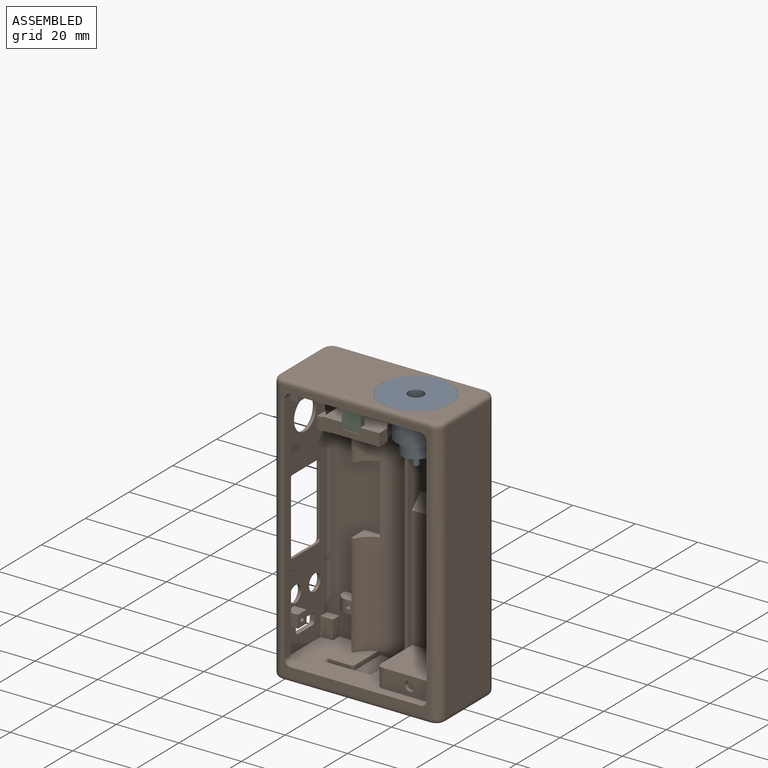
[diagram: assembled view]
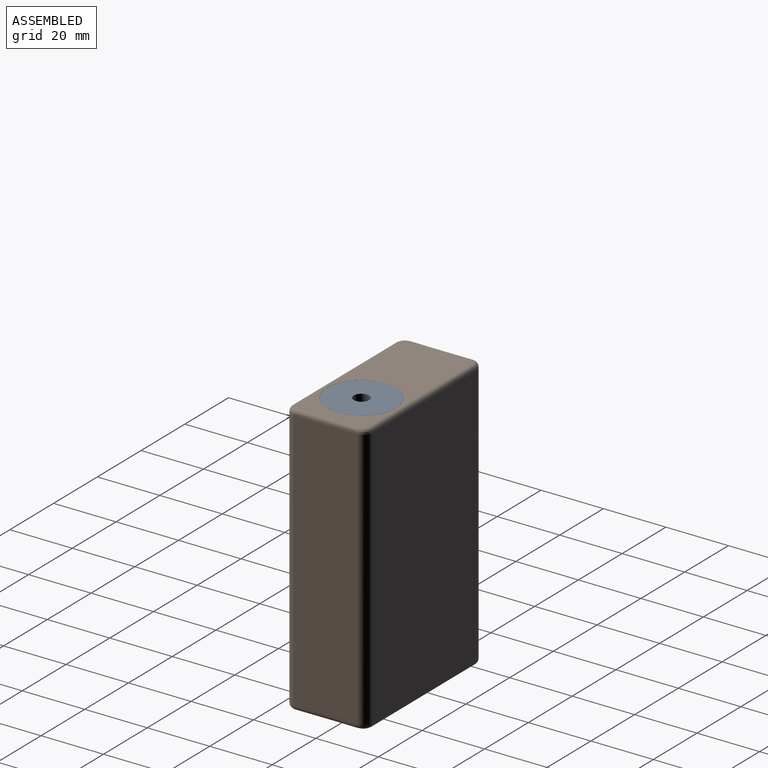
[diagram: assembled view, second angle]
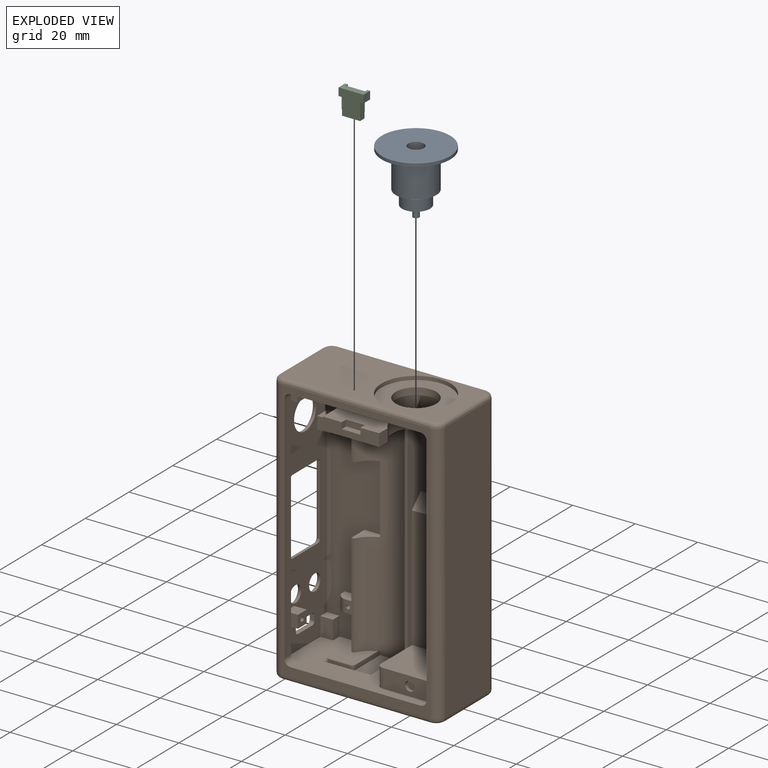
[diagram: exploded view]
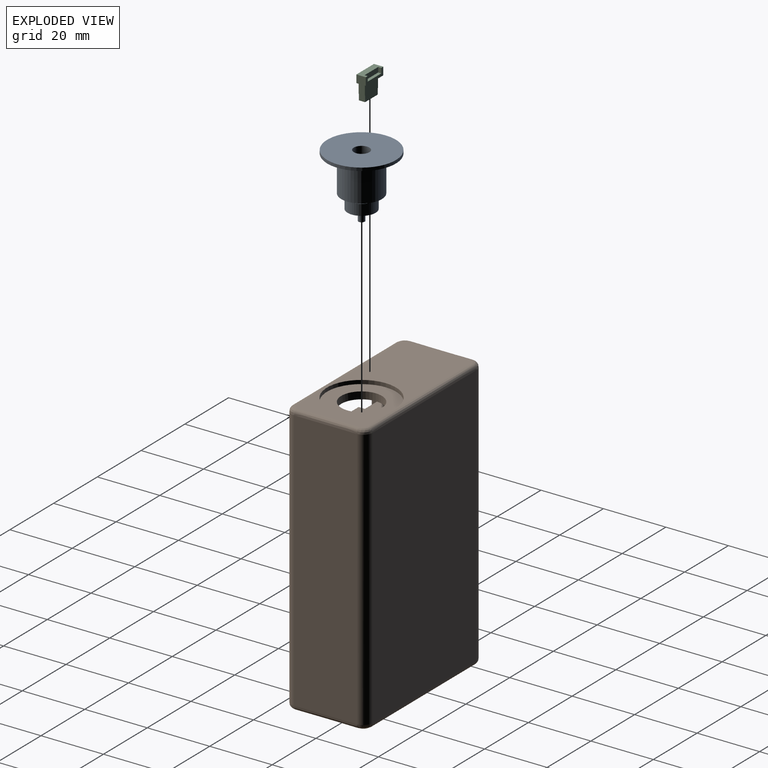
[diagram: exploded view, second angle]
ASSEMBLY  parts=3 mates=2
PART A: 13 faces, bbox 22x20.5x22 mm
  f0: cylinder r=11mm len=22mm, axis (0,1,0), area 69.1mm2, adj f1,f2
  f1: plane 22x22mm, normal (0,1,0), area 360.5mm2, adj f0,f4
  f2: plane 22x22mm, normal (0,-1,0), area 247.4mm2, adj f0,f3
  f3: cylinder r=6.5mm len=13mm, axis (0,1,0), area 469.7mm2, adj f2,f6
  f4: cylinder r=2.5mm len=5mm, axis (0,1,0), area 62.8mm2, adj f1,f5
  f5: plane 5x5mm, normal (0,1,0), area 19.6mm2, adj f4
  f6: plane 13x13mm, normal (0,-1,0), area 94.2mm2, adj f3,f7
  f7: cylinder r=3.5mm len=7mm, axis (0,1,0), area 22mm2, adj f6,f10
  f8: cylinder r=4.5mm len=9mm, axis (0,1,0), area 99mm2, adj f9,f10
  f9: plane 9x9mm, normal (0,-1,0), area 60.5mm2, adj f8,f11
  f10: plane 9x9mm, normal (0,1,0), area 25.1mm2, adj f7,f8
  f11: cylinder r=1mm len=3.5mm, axis (0,1,0), area 22mm2, adj f9,f12
  f12: plane 2x2mm, normal (0,-1,0), area 3.1mm2, adj f11
PART B: 165 faces, bbox 57.5x91x30 mm
  f0: plane 73x20mm, normal (1,0,0), area 1280mm2, adj f2,f5,f10,f37,f38,f40,f58,f59
  f1: plane 39x4.34mm, normal (0,0,1), area 169.4mm2, adj f8,f59,f143,f158
  f2: plane 39x4.34mm, normal (0,0,1), area 169.4mm2, adj f0,f59,f143,f158
  f3: plane 18x17.33mm, normal (0,1,0), area 120.4mm2, adj f11,f43,f44,f66,f68,f141,f153,f154
  f4: plane 46x23mm, normal (0,-1,0), area 548.7mm2, adj f9,f12,f21,f23,f41,f42,f49,f54
  f5: plane 30x26mm, normal (0,0,1), area 578mm2, adj f0,f8,f10,f37,f38,f39,f137,f143
  f6: plane 18x14mm, normal (0,-1,0), area 226mm2, adj f11,f43,f44,f131,f132,f134,f141,f144
  f7: plane 11.33x5.5mm, normal (0,1,0), area 50.7mm2, adj f43,f64,f67,f155,f156,f161
  f8: plane 72x6mm, normal (-1,0,0), area 239mm2, adj f1,f5,f59,f66,f141,f142,f143,f144
  f9: plane 79x18mm, normal (0,0,1), area 979.6mm2, adj f4,f10,f12,f17,f18,f19,f21,f22
  f10: plane 50x23mm, normal (0,1,0), area 813.8mm2, adj f0,f5,f9,f12,f35,f36,f49,f54
  f11: plane 18x4mm, normal (0,0,1), area 60mm2, adj f3,f6,f43,f44,f131,f132,f133
  f12: plane 79x20mm, normal (-1,0,0), area 974.7mm2, adj f4,f9,f10,f14,f15,f22,f23,f25
  f13: plane 84x20mm, normal (1,0,0), area 1052mm2, adj f73,f75,f79,f89,f99,f100,f101,f102
  f14: plane 4x4mm, normal (0,1,0), area 16mm2, adj f12,f24,f25,f69
  f15: plane 4x4mm, normal (0,-1,0), area 16mm2, adj f12,f24,f25,f69
  f16: plane 70.5x1.56mm, normal (0,0,1), area 110.1mm2, adj f67,f68,f151,f157
  f17: plane 6.3x4mm, normal (0,1,0), area 23.3mm2, adj f9,f19,f20,f42,f71
  f18: plane 6.3x4mm, normal (0,-1,0), area 23.3mm2, adj f9,f19,f20,f42,f71
  f19: plane 4x1mm, normal (1,0,0), area 4mm2, adj f9,f17,f18,f71
  f20: plane 4x3.3mm, normal (0,0,1), area 12mm2, adj f17,f18,f42,f71,f127
  f21: plane 6x3mm, normal (-1,0,0), area 18mm2, adj f4,f9,f22,f23
  f22: plane 4x3mm, normal (0,-1,0), area 12mm2, adj f9,f12,f21,f23
  f23: plane 6x4mm, normal (0,0,1), area 24mm2, adj f4,f12,f21,f22
  f24: plane 4x4mm, normal (-1,0,0), area 14.2mm2, adj f14,f15,f25,f69,f129
  f25: plane 4x4mm, normal (0,0,1), area 16mm2, adj f12,f14,f15,f24
  f26: plane 6.3x4mm, normal (0,1,0), area 23.3mm2, adj f9,f28,f29,f43,f70
  f27: plane 6.3x4mm, normal (0,-1,0), area 23.3mm2, adj f9,f28,f29,f43,f70
  f28: plane 4x1mm, normal (1,0,0), area 4mm2, adj f9,f26,f27,f70
  f29: plane 4x3.3mm, normal (0,0,1), area 12mm2, adj f26,f27,f43,f70,f125
  f30: plane 4.5x4mm, normal (-1,0,0), area 18mm2, adj f9,f31,f32,f33
  f31: plane 4.5x4mm, normal (0,-1,0), area 18mm2, adj f9,f12,f30,f33
  f32: plane 4.5x4mm, normal (0,1,0), area 18mm2, adj f9,f12,f30,f33
  f33: plane 4x4mm, normal (0,0,1), area 16mm2, adj f12,f30,f31,f32
  f34: plane 19x4mm, normal (0,1,0), area 76mm2, adj f9,f12,f35,f36
  f35: plane 19x4mm, normal (-1,0,0), area 76mm2, adj f9,f10,f34,f36
  f36: plane 4x4mm, normal (0,0,1), area 16mm2, adj f10,f12,f34,f35
  f37: plane 7x4mm, normal (0,1,0), area 28mm2, adj f0,f5,f39,f40
  f38: plane 7x4mm, normal (0,-1,0), area 28mm2, adj f0,f5,f39,f40
  f39: plane 4x4mm, normal (1,0,0), area 16mm2, adj f5,f37,f38,f40
  f40: plane 7x4mm, normal (0,0,1), area 26.8mm2, adj f0,f37,f38,f39,f139
  f41: plane 12x6mm, normal (1,0,0), area 72mm2, adj f4,f59,f61,f66
  f42: plane 33x6mm, normal (1,0,0), area 182mm2, adj f4,f9,f17,f18,f20,f47,f65
  f43: plane 23x19mm, normal (1,0,0), area 144.4mm2, adj f3,f6,f7,f9,f11,f26,f27,f29
  f44: plane 4x3.9mm, normal (-1,0,0), area 15.6mm2, adj f3,f6,f11,f141
  f45: plane 6x6mm, normal (0,1,0), area 21.4mm2, adj f9,f43,f46,f64,f67
  f46: plane 22x1.48mm, normal (1,0,0), area 32.5mm2, adj f9,f45,f47,f67
  f47: plane 6x6mm, normal (0,-1,0), area 21.4mm2, adj f9,f42,f46,f65,f67
  f48: plane 75x3mm, normal (1,0,0), area 225mm2, adj f49,f58,f60,f62,f63
  f49: plane 84x47.5mm, normal (0,0,1), area 398.9mm2, adj f4,f10,f48,f55,f56,f57,f62,f63
  f50: plane 84x47.5mm, normal (0,0,-1), area 3990mm2, adj f74,f75,f82,f93
  f51: plane 50.5x23mm, normal (0,-1,0), area 775.9mm2, adj f77,f87,f88,f89,f90,f91,f92,f93
  f52: plane 84x20mm, normal (-1,0,0), area 1680mm2, adj f72,f74,f86,f92
  f53: plane 50.5x23mm, normal (0,1,0), area 1159.5mm2, adj f79,f80,f81,f82,f83,f84,f85,f86
  f54: plane 79x4.5mm, normal (0,0,-1), area 199.2mm2, adj f4,f10,f12,f55,f56,f57
  f55: plane 75x3mm, normal (-1,0,0), area 225mm2, adj f49,f54,f56,f57
  f56: cylinder r=2mm len=3mm, axis (0,0,-1), area 9.4mm2, adj f10,f49,f54,f55
  f57: cylinder r=2mm len=3mm, axis (0,0,-1), area 9.4mm2, adj f4,f49,f54,f55
  f58: plane 73x4mm, normal (0,0,-1), area 146.9mm2, adj f0,f10,f48,f59,f62
  f59: plane 20x18mm, normal (0,-1,0), area 334.8mm2, adj f0,f1,f2,f8,f41,f58,f60,f61
  f60: plane 16x6mm, normal (0,0,1), area 87.6mm2, adj f4,f48,f59,f61,f63,f159
  f61: bspline ~6.6x2mm, area 19.5mm2, adj f4,f41,f59,f60
  f62: cylinder r=2mm len=3mm, axis (0,0,-1), area 9.4mm2, adj f10,f48,f49,f58
  f63: cylinder r=2mm len=3mm, axis (0,0,-1), area 9.4mm2, adj f4,f48,f49,f60
  f64: plane 14x0.9mm, normal (0,0,1), area 12.6mm2, adj f7,f43,f45,f67
  f65: plane 33x0.9mm, normal (0,0,1), area 29.7mm2, adj f4,f42,f47,f67
  f66: plane 69x0.9mm, normal (0,0,1), area 62.1mm2, adj f3,f4,f8,f41,f68,f142
  f67: cylinder r=9.03mm len=70.5mm, axis (0,-1,0), area 489.7mm2, adj f4,f7,f16,f45,f46,f47,f64,f65
  f68: cylinder r=9.03mm len=70.5mm, axis (0,-1,0), area 643.5mm2, adj f3,f4,f16,f66,f151,f153,f157
  f69: plane 4x4mm, normal (0,0,-1), area 16mm2, adj f12,f14,f15,f24
  f70: cylinder r=3mm len=4mm, axis (0,-1,0), area 18.8mm2, adj f26,f27,f28,f29
  f71: cylinder r=3mm len=4mm, axis (0,-1,0), area 18.8mm2, adj f17,f18,f19,f20
  f72: cylinder r=3mm len=84mm, axis (0,-1,0), area 395.8mm2, adj f49,f52,f85,f90
  f73: cylinder r=3mm len=84mm, axis (0,1,0), area 395.8mm2, adj f13,f49,f81,f87
  f74: cylinder r=3mm len=84mm, axis (0,1,0), area 395.8mm2, adj f50,f52,f84,f94
  f75: cylinder r=3mm len=84mm, axis (0,-1,0), area 395.8mm2, adj f13,f50,f80,f91
  f76: cylinder r=6.5mm len=13mm, axis (0,-1,0), area 93.8mm2, adj f10,f78
  f77: cylinder r=11.05mm len=22.1mm, axis (0,-1,0), area 83.3mm2, adj f51,f78
  f78: plane 22.1x22.1mm, normal (0,-1,0), area 250.9mm2, adj f76,f77
  f79: bspline ~20x1.5mm, area 48.7mm2, adj f13,f53,f80,f81
  f80: bspline ~3x3mm, area 9.5mm2, adj f53,f75,f79,f82
  f81: bspline ~3x3mm, area 9.5mm2, adj f53,f73,f79,f83
  f82: bspline ~47.5x1.5mm, area 115.7mm2, adj f50,f53,f80,f84
  f83: bspline ~47.5x1.5mm, area 115.7mm2, adj f49,f53,f81,f85
  f84: bspline ~3x3mm, area 9.5mm2, adj f53,f74,f82,f86
  f85: bspline ~3x3mm, area 9.5mm2, adj f53,f72,f83,f86
  f86: bspline ~20x1.5mm, area 48.7mm2, adj f52,f53,f84,f85
  f87: bspline ~3x3mm, area 9.5mm2, adj f51,f73,f88,f89
  f88: bspline ~47.5x1.5mm, area 115.7mm2, adj f49,f51,f87,f90
  f89: bspline ~20x1.5mm, area 48.7mm2, adj f13,f51,f87,f91
  f90: bspline ~3x3mm, area 9.5mm2, adj f51,f72,f88,f92
  f91: bspline ~3x3mm, area 9.5mm2, adj f51,f75,f89,f93
  f92: bspline ~20x1.5mm, area 48.7mm2, adj f51,f52,f90,f94
  f93: bspline ~47.5x1.5mm, area 115.7mm2, adj f50,f51,f91,f94
  f94: bspline ~3x3mm, area 9.5mm2, adj f51,f74,f92,f93
  f95: plane 22.2x0.5mm, normal (0,0,1), area 11.1mm2, adj f12,f110,f112,f121
  f96: plane 11.5x0.5mm, normal (0,1,0), area 5.7mm2, adj f12,f110,f111,f118
  f97: plane 22.2x0.5mm, normal (0,0,-1), area 11.1mm2, adj f12,f111,f113,f114
  f98: plane 11.5x0.5mm, normal (0,-1,0), area 5.7mm2, adj f12,f112,f113,f117
  f99: plane 1.5x1.5mm, normal (0,0,-1), area 2.2mm2, adj f12,f13,f106,f108
  f100: plane 6.5x1.5mm, normal (0,-1,0), area 9.7mm2, adj f12,f13,f106,f107
  f101: plane 1.5x1.5mm, normal (0,0,1), area 2.2mm2, adj f12,f13,f107,f109
  f102: plane 6.5x1.5mm, normal (0,1,0), area 9.7mm2, adj f12,f13,f108,f109
  f103: cylinder r=5.05mm len=10.1mm, axis (-1,0,0), area 15.9mm2, adj f12,f122
  f104: cylinder r=2.6mm len=5.2mm, axis (-1,0,0), area 8.2mm2, adj f12,f123
  f105: cylinder r=2.6mm len=5.2mm, axis (-1,0,0), area 8.2mm2, adj f12,f124
  f106: cylinder r=1mm len=1.5mm, axis (1,0,0), area 2.4mm2, adj f12,f13,f99,f100
  f107: cylinder r=1mm len=1.5mm, axis (-1,0,0), area 2.4mm2, adj f12,f13,f100,f101
  f108: cylinder r=1mm len=1.5mm, axis (-1,0,0), area 2.4mm2, adj f12,f13,f99,f102
  f109: cylinder r=1mm len=1.5mm, axis (1,0,0), area 2.4mm2, adj f12,f13,f101,f102
  f110: cylinder r=1mm len=1mm, axis (1,0,0), area 0.8mm2, adj f12,f95,f96,f120
  f111: cylinder r=1mm len=1mm, axis (-1,0,0), area 0.8mm2, adj f12,f96,f97,f116
  f112: cylinder r=1mm len=1mm, axis (-1,0,0), area 0.8mm2, adj f12,f95,f98,f119
  f113: cylinder r=1mm len=1mm, axis (1,0,0), area 0.8mm2, adj f12,f97,f98,f115
  f114: cylinder r=1mm len=22.2mm, axis (0,-1,0), area 34.9mm2, adj f13,f97,f115,f116
  f115: torus R=2mm, axis (-1,0,0), area 3.4mm2, adj f13,f113,f114,f117
  f116: torus R=2mm, axis (-1,0,0), area 3.4mm2, adj f13,f111,f114,f118
  f117: cylinder r=1mm len=11.5mm, axis (0,0,1), area 18.1mm2, adj f13,f98,f115,f119
  f118: cylinder r=1mm len=11.5mm, axis (0,0,-1), area 18.1mm2, adj f13,f96,f116,f120
  f119: torus R=2mm, axis (-1,0,0), area 3.4mm2, adj f13,f112,f117,f121
  f120: torus R=2mm, axis (-1,0,0), area 3.4mm2, adj f13,f110,f118,f121
  f121: cylinder r=1mm len=22.2mm, axis (0,1,0), area 34.9mm2, adj f13,f95,f119,f120
  f122: torus R=6.05mm, axis (-1,0,0), area 53.4mm2, adj f13,f103
  f123: torus R=3.6mm, axis (-1,0,0), area 29.2mm2, adj f13,f104
  f124: torus R=3.6mm, axis (-1,0,0), area 29.2mm2, adj f13,f105
  f125: cylinder r=0.62mm len=4mm, axis (0,0,1), area 15.7mm2, adj f29,f126
  f126: plane 1.25x1.25mm, normal (0,0,1), area 1.2mm2, adj f125
  f127: cylinder r=0.62mm len=4mm, axis (0,0,1), area 15.7mm2, adj f20,f128
  f128: plane 1.25x1.25mm, normal (0,0,1), area 1.2mm2, adj f127
  f129: cylinder r=0.75mm len=4mm, axis (-1,0,0), area 18.8mm2, adj f24,f130
  f130: plane 1.5x1.5mm, normal (-1,0,0), area 1.8mm2, adj f129
  f131: plane 2x2mm, normal (1,0,0), area 4mm2, adj f6,f11,f133,f134
  f132: plane 2x2mm, normal (-1,0,0), area 4mm2, adj f6,f11,f133,f134
  f133: plane 6x2mm, normal (0,-1,0), area 12mm2, adj f11,f131,f132,f134
  f134: plane 6x2mm, normal (0,0,1), area 12mm2, adj f6,f131,f132,f133
  f135: plane 6x1.5mm, normal (0,0,1), area 9mm2, adj f10,f136,f137,f138
  f136: plane 17x1.5mm, normal (1,0,0), area 25.5mm2, adj f9,f10,f135,f138,f144
  f137: plane 17x1.5mm, normal (-1,0,0), area 25.5mm2, adj f5,f10,f135,f138,f144
  f138: plane 16.98x6mm, normal (0,1,0), area 101.8mm2, adj f135,f136,f137,f144
  f139: cylinder r=0.62mm len=4mm, axis (0,0,1), area 15.7mm2, adj f40,f140
  f140: plane 1.25x1.25mm, normal (0,0,1), area 1.2mm2, adj f139
  f141: cylinder r=7.5mm len=10.2mm, axis (0,1,0), area 44.9mm2, adj f3,f6,f8,f44,f142,f144
  f142: plane 1.1x0.84mm, normal (0,-1,0), area 0.5mm2, adj f8,f66,f141
  f143: plane 24x8mm, normal (0,-0.71,0.71), area 91.3mm2, adj f0,f1,f2,f5,f8,f158
  f144: cylinder r=5mm len=18mm, axis (1,0,0), area 138.4mm2, adj f5,f6,f8,f9,f43,f136,f137,f138
  f145: plane 11.29x1.5mm, normal (-1,0,0), area 16.9mm2, adj f4,f150,f151,f152,f163
  f146: plane 8x1.5mm, normal (0,0,1), area 10.7mm2, adj f4,f147,f150,f163,f164
  f147: plane 2x0.5mm, normal (-1,0,0), area 1mm2, adj f146,f148,f150,f164
  f148: plane 16x1.5mm, normal (0,0,-1), area 22.7mm2, adj f4,f147,f149,f150,f164
  f149: plane 14.29x1.5mm, normal (1,0,0), area 21.4mm2, adj f4,f148,f150,f151,f152
  f150: plane 15x14.29mm, normal (0,-1,0), area 116.3mm2, adj f145,f146,f147,f148,f149,f152,f163
  f151: plane 7x0.96mm, normal (0,1,0), area 3.5mm2, adj f16,f67,f68,f145,f149,f152
  f152: plane 7x1.5mm, normal (0,0,1), area 10.5mm2, adj f145,f149,f150,f151
  f153: plane 13.33x1.5mm, normal (1,0,0), area 20mm2, adj f3,f68,f154,f157
  f154: plane 12.5x2.5mm, normal (0,0,-1), area 19mm2, adj f3,f43,f153,f157,f162
  f155: plane 4.5x2.5mm, normal (0,0,1), area 7mm2, adj f7,f43,f157,f161,f162
  f156: plane 10.33x1.5mm, normal (-1,0,0), area 15.5mm2, adj f7,f67,f157,f161
  f157: plane 14x11.5mm, normal (0,1,0), area 105.8mm2, adj f16,f67,f68,f153,f154,f155,f156,f161
  f158: cylinder r=9mm len=39mm, axis (0,1,0), area 477.1mm2, adj f1,f2,f59,f143
  f159: cylinder r=1.55mm len=3.1mm, axis (0,0,1), area 10.7mm2, adj f60,f160
  f160: plane 3.1x3.1mm, normal (0,0,1), area 7.5mm2, adj f159
  f161: cylinder r=1mm len=1.5mm, axis (0,1,0), area 2.4mm2, adj f7,f155,f156,f157
  f162: cylinder r=1mm len=2mm, axis (0,0,1), area 3.1mm2, adj f43,f154,f155,f157
  f163: cylinder r=1mm len=1.5mm, axis (0,1,0), area 2.4mm2, adj f4,f145,f146,f150
  f164: cylinder r=1mm len=2mm, axis (0,0,1), area 3.1mm2, adj f4,f146,f147,f148
PART C: 18 faces, bbox 8x7.9x3 mm
  f0: plane 6.2x1.6mm, normal (0,0,-1), area 9.9mm2, adj f6,f14,f15,f16
  f1: plane 2x1.9mm, normal (-1,0,0), area 3.8mm2, adj f2,f11,f12,f13
  f2: plane 2x0.1mm, normal (0,1,0), area 0.2mm2, adj f1,f3,f12,f13
  f3: plane 3.5x2mm, normal (-1,0,0), area 7mm2, adj f2,f4,f12,f13
  f4: plane 8x3mm, normal (0,1,0), area 12mm2, adj f3,f5,f7,f8,f12,f13,f17
  f5: plane 3x2.5mm, normal (-1,0,0), area 7.5mm2, adj f4,f6,f12,f17
  f6: plane 8x3mm, normal (0,-1,0), area 17.8mm2, adj f0,f5,f7,f12,f14,f15,f17
  f7: plane 3x2.5mm, normal (1,0,0), area 7.5mm2, adj f4,f6,f12,f17
  f8: plane 3.5x2mm, normal (1,0,0), area 7mm2, adj f4,f9,f12,f13
  f9: plane 2x0.1mm, normal (0,1,0), area 0.2mm2, adj f8,f10,f12,f13
  f10: plane 2x1.9mm, normal (1,0,0), area 3.8mm2, adj f9,f11,f12,f13
  f11: plane 5.8x2mm, normal (0,1,0), area 11.6mm2, adj f1,f10,f12,f13
  f12: plane 8x7.9mm, normal (0,0,1), area 52mm2, adj f1,f2,f3,f4,f5,f6,f7,f8
  f13: plane 6x5.4mm, normal (0,0,-1), area 32mm2, adj f1,f2,f3,f4,f8,f9,f10,f11
  f14: plane 1.6x1mm, normal (-1,0,0), area 1.6mm2, adj f0,f6,f16,f17
  f15: plane 1.6x1mm, normal (1,0,0), area 1.6mm2, adj f0,f6,f16,f17
  f16: plane 6.2x1mm, normal (0,-1,0), area 6.2mm2, adj f0,f14,f15,f17
  f17: plane 8x2.5mm, normal (0,0,-1), area 10.1mm2, adj f4,f5,f6,f7,f14,f15,f16
PLACE A rot(axis=(0,0.71,0.71),180deg) t=(15.61,17.55,48.95)mm
PLACE B rot(axis=(0,-0.71,0.71),180deg) t=(3.38,27.55,5.95)mm
PLACE C rot(axis=(0,-0.71,0.71),180deg) t=(3.38,27.55,5.95)mm
MATE fastened A.f0 <-> B.f141  axis (0,0,1) through (15.61,17.55,48.95)mm
MATE fastened C.f6 <-> B.f10  axis (0,0,1) through (1.11,10.55,45.45)mm
